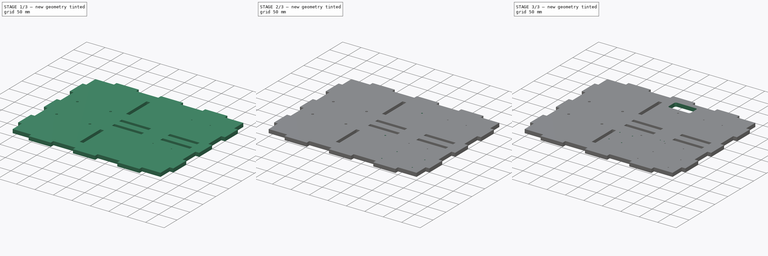
[diagram: build sequence overview — one tinted view per stage of 3, left to right]
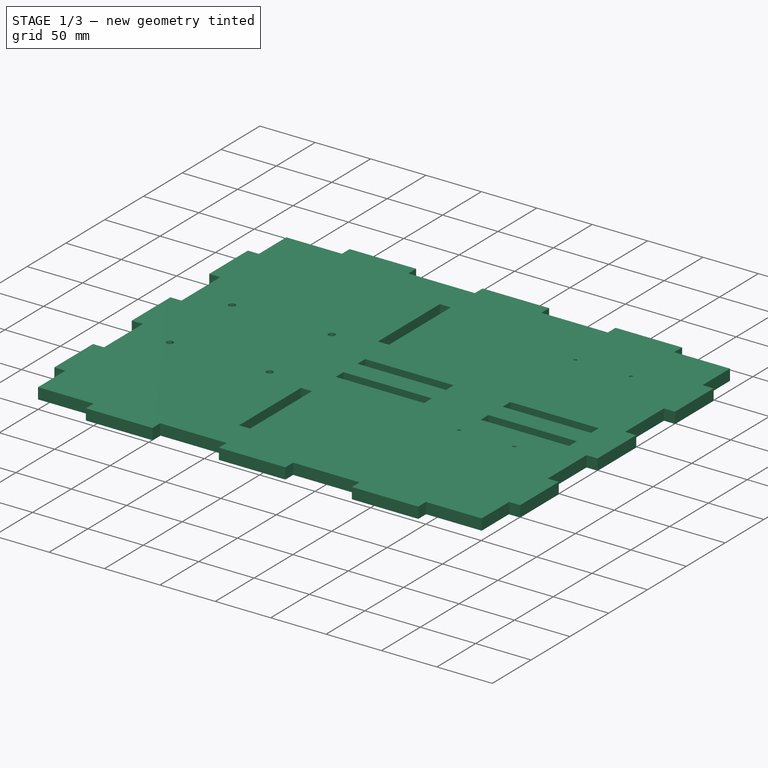
[diagram: stage 1 of 3 — iso view after this stage's code; geometry added in this stage tinted green]
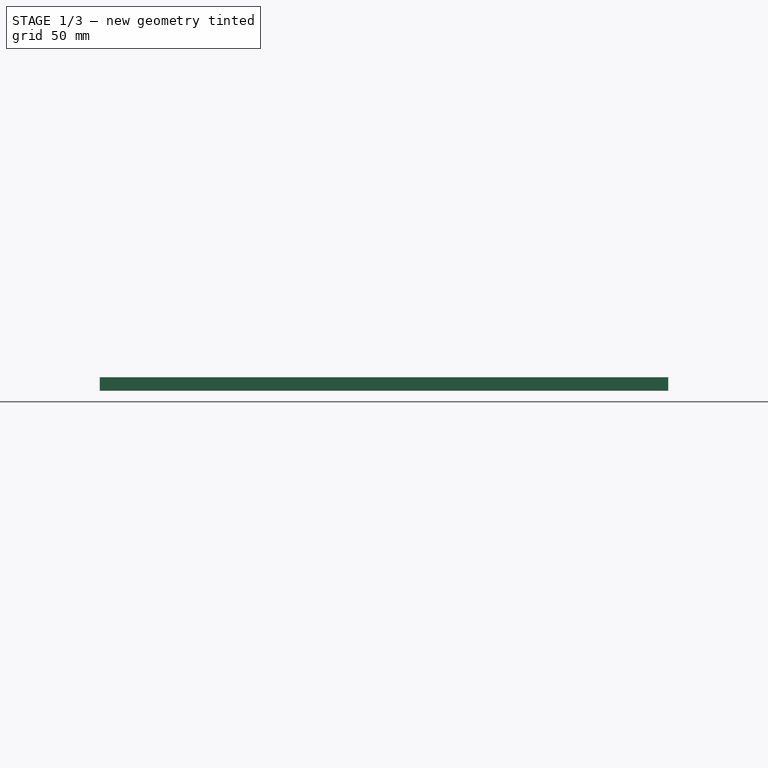
[diagram: stage 1 of 3 — front view after this stage's code; geometry added in this stage tinted green]
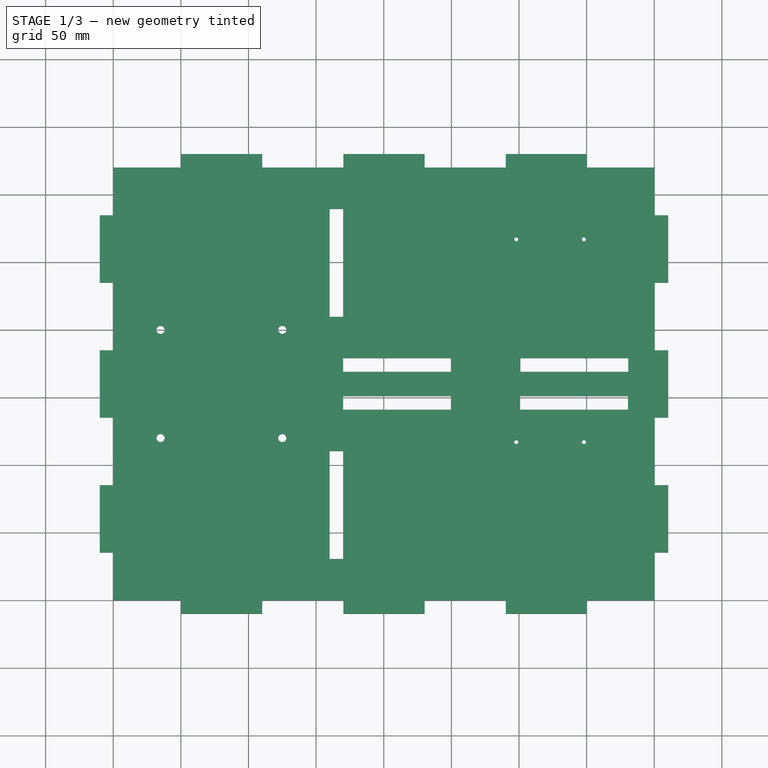
[diagram: stage 1 of 3 — top view after this stage's code; geometry added in this stage tinted green]
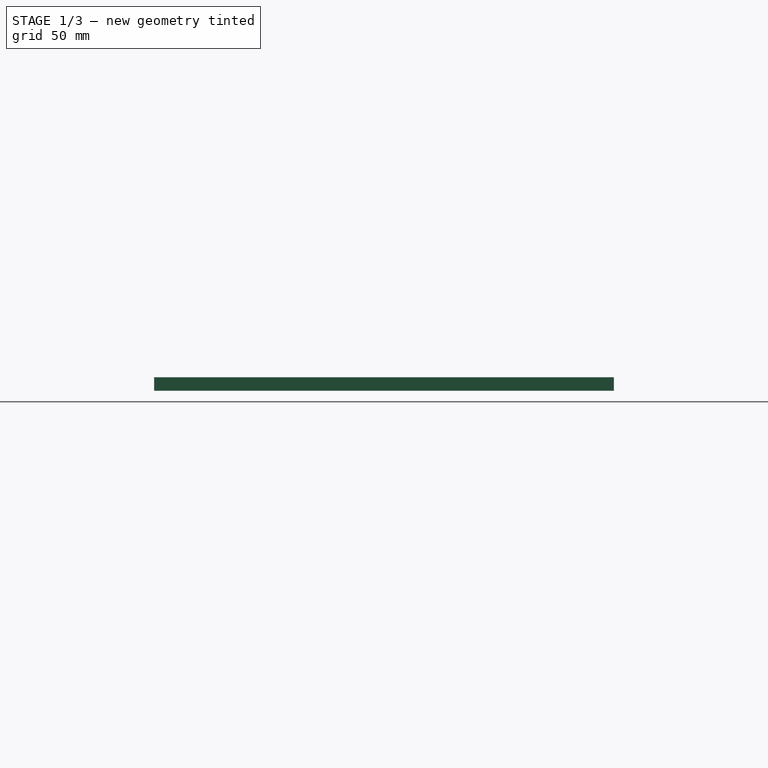
[diagram: stage 1 of 3 — right view after this stage's code; geometry added in this stage tinted green]
FCSTD DOCUMENT  (FreeCAD 0.19R19327 (Git))
Label: Base_metacrilato
License: All rights reserved
LicenseURL: http://en.wikipedia.org/wiki/All_rights_reserved
objects: Sketcher::SketchObject×8, PartDesign::Pocket×7, PartDesign::Pad×1, PartDesign::Plane×1, PartDesign::Body×1
note: 26 computed .brp shape members not serialized (recipe doc carries the construction recipe); baked Part::Feature solids carry a one-line shape summary decoded from their .brp

FEATURE [Sketcher::SketchObject] Sketch  label="Base"
  MapMode = 5
  Support = -> [XY_Plane]
  sketch-geometry (78):
    g0: LineSegment StartX=0 StartY=0 StartZ=0 EndX=0 EndY=35.3 EndZ=0
    g1: LineSegment StartX=0 StartY=35.3 StartZ=0 EndX=-10 EndY=35.3 EndZ=0
    g2: LineSegment StartX=-10 StartY=35.3 StartZ=0 EndX=-10 EndY=85.1 EndZ=0
    g3: LineSegment StartX=-10 StartY=85.1 StartZ=0 EndX=0 EndY=85.1 EndZ=0
    g4: LineSegment StartX=0 StartY=85.1 StartZ=0 EndX=0 EndY=135.1 EndZ=0
    g5: LineSegment StartX=0 StartY=135.1 StartZ=0 EndX=-10 EndY=135.1 EndZ=0
    g6: LineSegment StartX=-10 StartY=135.1 StartZ=0 EndX=-10 EndY=184.9 EndZ=0
    g7: LineSegment StartX=-10 StartY=184.9 StartZ=0 EndX=1.8e-15 EndY=184.9 EndZ=0
    g8: LineSegment StartX=1.8e-15 StartY=184.9 StartZ=0 EndX=0 EndY=234.9 EndZ=0
    g9: LineSegment StartX=0 StartY=234.9 StartZ=0 EndX=-10 EndY=234.9 EndZ=0
    g10: LineSegment StartX=-10 StartY=234.9 StartZ=0 EndX=-10 EndY=284.7 EndZ=0
    g11: LineSegment StartX=-10 StartY=284.7 StartZ=0 EndX=0 EndY=284.7 EndZ=0
    g12: LineSegment StartX=-5e-16 StartY=284.7 StartZ=0 EndX=0 EndY=320 EndZ=0
    g13: LineSegment StartX=0 StartY=320 StartZ=0 EndX=50.2 EndY=320 EndZ=0
    g14: LineSegment StartX=50.2 StartY=320 StartZ=0 EndX=50.2 EndY=330 EndZ=0
    g15: LineSegment StartX=50.2 StartY=330 StartZ=0 EndX=110.2 EndY=330 EndZ=0
    g16: LineSegment StartX=110.2 StartY=330 StartZ=0 EndX=110.2 EndY=320 EndZ=0
    g17: LineSegment StartX=110.2 StartY=320 StartZ=0 EndX=170.2 EndY=320 EndZ=0
    g18: LineSegment StartX=170.2 StartY=320 StartZ=0 EndX=170.2 EndY=330 EndZ=0
    g19: LineSegment StartX=170.2 StartY=330 StartZ=0 EndX=230.2 EndY=330 EndZ=0
    g20: LineSegment StartX=230.2 StartY=330 StartZ=0 EndX=230.2 EndY=320 EndZ=0
    g21: LineSegment StartX=230.2 StartY=320 StartZ=0 EndX=290.2 EndY=320 EndZ=0
    g22: LineSegment StartX=290.2 StartY=320 StartZ=0 EndX=290.2 EndY=330 EndZ=0
    g23: LineSegment StartX=290.2 StartY=330 StartZ=0 EndX=350.2 EndY=330 EndZ=0
    g24: LineSegment StartX=350.2 StartY=330 StartZ=0 EndX=350.2 EndY=320 EndZ=0
    g25: LineSegment StartX=350.2 StartY=320 StartZ=0 EndX=400.4 EndY=320 EndZ=0
    g26: LineSegment StartX=410.4 StartY=284.7 StartZ=0 EndX=410.4 EndY=234.9 EndZ=0
    g27: LineSegment StartX=410.4 StartY=234.9 StartZ=0 EndX=400.4 EndY=234.9 EndZ=0
    g28: LineSegment StartX=400.4 StartY=234.9 StartZ=0 EndX=400.4 EndY=184.9 EndZ=0
    g29: LineSegment StartX=400.4 StartY=184.9 StartZ=0 EndX=410.4 EndY=184.9 EndZ=0
    g30: LineSegment StartX=410.4 StartY=184.9 StartZ=0 EndX=410.4 EndY=135.1 EndZ=0
    g31: LineSegment StartX=410.4 StartY=135.1 StartZ=0 EndX=400.4 EndY=135.1 EndZ=0
    g32: LineSegment StartX=400.4 StartY=135.1 StartZ=0 EndX=400.4 EndY=85.1 EndZ=0
    g33: LineSegment StartX=400.4 StartY=85.1 StartZ=0 EndX=410.4 EndY=85.1 EndZ=0
    g34: LineSegment StartX=410.4 StartY=85.1 StartZ=0 EndX=410.4 EndY=35.3 EndZ=0
    g35: LineSegment StartX=410.4 StartY=35.3 StartZ=0 EndX=400.4 EndY=35.3 EndZ=0
    g36: LineSegment StartX=400.4 StartY=35.3 StartZ=0 EndX=400.4 EndY=0 EndZ=0
    g37: LineSegment StartX=400.4 StartY=0 StartZ=0 EndX=350.2 EndY=0 EndZ=0
    g38: LineSegment StartX=350.2 StartY=0 StartZ=0 EndX=350.2 EndY=-10 EndZ=0
    g39: LineSegment StartX=350.2 StartY=-10 StartZ=0 EndX=290.2 EndY=-10 EndZ=0
    g40: LineSegment StartX=290.2 StartY=-10 StartZ=0 EndX=290.2 EndY=0 EndZ=0
    g41: LineSegment StartX=290.2 StartY=0 StartZ=0 EndX=230.2 EndY=0 EndZ=0
    g42: LineSegment StartX=230.2 StartY=0 StartZ=0 EndX=230.2 EndY=-10 EndZ=0
    g43: LineSegment StartX=230.2 StartY=-10 StartZ=0 EndX=170.2 EndY=-10 EndZ=0
    g44: LineSegment StartX=170.2 StartY=-10 StartZ=0 EndX=170.2 EndY=0 EndZ=0
    g45: LineSegment StartX=170.2 StartY=0 StartZ=0 EndX=110.2 EndY=0 EndZ=0
    g46: LineSegment StartX=110.2 StartY=0 StartZ=0 EndX=110.2 EndY=-10 EndZ=0
    g47: LineSegment StartX=110.2 StartY=-10 StartZ=0 EndX=50.2 EndY=-10 EndZ=0
    g48: LineSegment StartX=50.2 StartY=-10 StartZ=0 EndX=50.2 EndY=0 EndZ=0
    g49: LineSegment StartX=50.2 StartY=0 StartZ=0 EndX=0 EndY=0 EndZ=0
    g50: LineSegment StartX=410.4 StartY=284.7 StartZ=0 EndX=400.4 EndY=284.7 EndZ=0
    g51: LineSegment StartX=400.4 StartY=284.7 StartZ=0 EndX=400.4 EndY=320 EndZ=0
    g52: LineSegment StartX=170 StartY=289.4 StartZ=0 EndX=160 EndY=289.4 EndZ=0
    g53: LineSegment StartX=160 StartY=289.4 StartZ=0 EndX=160 EndY=209.6 EndZ=0
    g54: LineSegment StartX=160 StartY=209.6 StartZ=0 EndX=170 EndY=209.6 EndZ=0
    g55: LineSegment StartX=170 StartY=209.6 StartZ=0 EndX=170 EndY=289.4 EndZ=0
    g56: LineSegment StartX=170 StartY=110.4 StartZ=0 EndX=160 EndY=110.4 EndZ=0
    g57: LineSegment StartX=160 StartY=110.4 StartZ=0 EndX=160 EndY=30.6 EndZ=0
    g58: LineSegment StartX=160 StartY=30.6 StartZ=0 EndX=170 EndY=30.6 EndZ=0
    g59: LineSegment StartX=170 StartY=30.6 StartZ=0 EndX=170 EndY=110.4 EndZ=0
    g60: LineSegment StartX=170 StartY=179 StartZ=0 EndX=249.8 EndY=179 EndZ=0
    g61: LineSegment StartX=249.8 StartY=179 StartZ=0 EndX=249.8 EndY=169 EndZ=0
    g62: LineSegment StartX=249.8 StartY=169 StartZ=0 EndX=170 EndY=169 EndZ=0
    g63: LineSegment StartX=170 StartY=169 StartZ=0 EndX=170 EndY=179 EndZ=0
    g64: LineSegment StartX=301 StartY=179 StartZ=0 EndX=380.8 EndY=179 EndZ=0
    g65: LineSegment StartX=380.8 StartY=179 StartZ=0 EndX=380.8 EndY=169 EndZ=0
    g66: LineSegment StartX=380.8 StartY=169 StartZ=0 EndX=301 EndY=169 EndZ=0
    g67: LineSegment StartX=301 StartY=169 StartZ=0 EndX=301 EndY=179 EndZ=0
    g68: LineSegment StartX=170 StartY=151 StartZ=0 EndX=249.8 EndY=151 EndZ=0
    g69: LineSegment StartX=249.8 StartY=151 StartZ=0 EndX=249.8 EndY=141 EndZ=0
    g70: LineSegment StartX=249.8 StartY=141 StartZ=0 EndX=170 EndY=141 EndZ=0
    g71: LineSegment StartX=170 StartY=141 StartZ=0 EndX=170 EndY=151 EndZ=0
    g72: LineSegment StartX=300.8 StartY=151 StartZ=0 EndX=380.6 EndY=151 EndZ=0
    g73: LineSegment StartX=380.6 StartY=151 StartZ=0 EndX=380.6 EndY=141 EndZ=0
    g74: LineSegment StartX=380.6 StartY=141 StartZ=0 EndX=300.8 EndY=141 EndZ=0
    g75: LineSegment StartX=300.8 StartY=141 StartZ=0 EndX=300.8 EndY=151 EndZ=0
    g76: LineSegment [constr] StartX=170 StartY=0 StartZ=0 EndX=170 EndY=320 EndZ=0
    g77: LineSegment [constr] StartX=170 StartY=169 StartZ=0 EndX=410.4 EndY=169 EndZ=0
  constraints (234):
    c: Coincident(g-1,g0)
    c: Vertical(g0)
    c: Coincident(g0,g1)
    c: Horizontal(g1)
    c: Coincident(g1,g2)
    c: Vertical(g2)
    c: Coincident(g2,g3)
    c: Horizontal(g3)
    c: Coincident(g3,g4)
    c: PointOnObject(g4,g-2)
    c: Coincident(g4,g5)
    c: Coincident(g5,g6)
    c: Vertical(g6)
    c: Coincident(g6,g7)
    c: Horizontal(g7)
    c: Coincident(g7,g8)
    c: PointOnObject(g8,g-2)
    c: Coincident(g8,g9)
    c: Coincident(g9,g10)
    c: Vertical(g10)
    c: Coincident(g10,g11)
    c: Coincident(g11,g12)
    c: PointOnObject(g12,g-2)
    c: Coincident(g12,g13)
    c: Horizontal(g13)
    c: Coincident(g13,g14)
    c: Vertical(g14)
    c: Coincident(g14,g15)
    c: Horizontal(g15)
    c: Coincident(g15,g16)
    c: Coincident(g16,g17)
    c: Horizontal(g17)
    c: Coincident(g17,g18)
    c: Vertical(g18)
    c: Coincident(g18,g19)
    c: Horizontal(g19)
    c: Coincident(g19,g20)
    c: Vertical(g20)
    c: Coincident(g20,g21)
    c: Horizontal(g21)
    c: Coincident(g21,g22)
    c: Coincident(g22,g23)
    c: Horizontal(g23)
    c: Coincident(g23,g24)
    c: Coincident(g24,g25)
    c: Coincident(g26,g27)
    c: Coincident(g27,g28)
    c: Coincident(g28,g29)
    c: Horizontal(g29)
    c: Coincident(g29,g30)
    c: Vertical(g30)
    c: Coincident(g30,g31)
    c: Horizontal(g31)
    c: Coincident(g31,g32)
    c: Coincident(g32,g33)
    c: Coincident(g33,g34)
    c: Vertical(g34)
    c: Coincident(g34,g35)
    c: Coincident(g35,g36)
    c: PointOnObject(g36,g-1)
    c: Coincident(g36,g37)
    c: PointOnObject(g37,g-1)
    c: Coincident(g37,g38)
    c: Vertical(g38)
    c: Coincident(g38,g39)
    c: Coincident(g39,g40)
    c: Coincident(g40,g41)
    c: PointOnObject(g41,g-1)
    c: Horizontal(g41)
    c: Coincident(g41,g42)
    c: Coincident(g42,g43)
    c: Coincident(g43,g44)
    c: Coincident(g44,g45)
    c: PointOnObject(g45,g-1)
    c: Coincident(g45,g46)
    c: Vertical(g46)
    c: Coincident(g46,g47)
    c: Horizontal(g47)
    c: Coincident(g47,g48)
    c: Coincident(g48,g49)
    c: Coincident(g49,g0)
    c: Coincident(g26,g50)
    c: Horizontal(g50)
    c: Coincident(g50,g51)
    c: Coincident(g51,g25)
    c: Vertical(g51)
    c: Vertical(g26)
    c: Vertical(g28)
    c: Vertical(g32)
    c: Vertical(g36)
    c: Vertical(g48)
    c: Vertical(g44)
    c: Vertical(g42)
    c: Vertical(g40)
    c: Vertical(g16)
    c: Vertical(g22)
    c: Vertical(g24)
    c: Horizontal(g43)
    c: Horizontal(g35)
    c: Horizontal(g33)
    c: Horizontal(g25)
    c: Horizontal(g27)
    c: Horizontal(g9)
    c: Horizontal(g11)
    c: Equal(g34,g30)
    c: Equal(g30,g26)
    c: Equal(g26,g10)
    c: Equal(g10,g6)
    c: Equal(g6,g2)
    c: DistanceY(g10,g10) = 49.8
    c: Equal(g33,g35)
    c: Equal(g35,g38)
    c: Equal(g38,g40)
    c: Equal(g40,g42)
    c: Equal(g42,g44)
    c: Equal(g44,g46)
    c: Equal(g46,g48)
    c: Equal(g48,g1)
    c: Equal(g1,g3)
    c: Equal(g3,g5)
    c: Equal(g5,g7)
    c: Equal(g7,g9)
    c: Equal(g9,g11)
    c: Equal(g11,g14)
    c: Equal(g14,g16)
    c: Equal(g16,g18)
    c: Equal(g18,g20)
    c: Equal(g20,g22)
    c: Equal(g22,g24)
    c: Equal(g24,g50)
    c: Equal(g50,g27)
    c: Equal(g27,g29)
    c: Equal(g29,g31)
    c: DistanceX(g50,g50) = 10
    c: Equal(g0,g12)
    c: Equal(g12,g51)
    c: Equal(g51,g36)
    c: DistanceY(g12,g12) = 35.3
    c: DistanceX(g13,g13) = 50.2
    c: Equal(g13,g25)
    c: Equal(g25,g37)
    c: Equal(g37,g49)
    c: DistanceX(g15,g15) = 60
    c: Equal(g43,g47)
    c: Equal(g47,g39)
    c: Equal(g39,g23)
    c: Equal(g23,g19)
    c: Equal(g19,g15)
    c: Equal(g45,g47)
    c: Equal(g15,g17)
    c: Equal(g17,g21)
    c: Coincident(g52,g53)
    c: Coincident(g53,g54)
    c: Coincident(g54,g55)
    c: Coincident(g55,g52)
    c: Horizontal(g52)
    c: Horizontal(g54)
    c: Vertical(g53)
    c: Coincident(g56,g57)
    c: Coincident(g57,g58)
    c: Coincident(g58,g59)
    c: Coincident(g59,g56)
    c: Horizontal(g56)
    c: Horizontal(g58)
    c: Vertical(g57)
    c: Coincident(g60,g61)
    c: Coincident(g61,g62)
    c: Coincident(g62,g63)
    c: Coincident(g63,g60)
    c: Horizontal(g60)
    c: Vertical(g61)
    c: Vertical(g63)
    c: Coincident(g64,g65)
    c: Coincident(g65,g66)
    c: Coincident(g66,g67)
    c: Coincident(g67,g64)
    c: Horizontal(g64)
    c: Vertical(g65)
    c: Vertical(g67)
    c: Coincident(g68,g69)
    c: Coincident(g69,g70)
    c: Coincident(g70,g71)
    c: Coincident(g71,g68)
    c: Horizontal(g68)
    c: Vertical(g69)
    c: Vertical(g71)
    c: Coincident(g72,g73)
    c: Coincident(g73,g74)
    c: Coincident(g74,g75)
    c: Coincident(g75,g72)
    c: Horizontal(g72)
    c: Vertical(g73)
    c: Vertical(g75)
    c: Equal(g52,g54)
    c: Equal(g54,g56)
    c: Equal(g56,g63)
    c: Equal(g63,g61)
    c: Equal(g61,g67)
    c: Equal(g67,g65)
    c: Equal(g65,g73)
    c: Equal(g73,g75)
    c: Equal(g75,g69)
    c: Equal(g69,g71)
    c: Equal(g71,g58)
    c: DistanceX(g58,g58) = 10
    c: Vertical(g76)
    c: PointOnObject(g76,g-1)
    c: PointOnObject(g76,g13)
    c: DistanceX(g0,g76) = 170
    c: PointOnObject(g58,g76)
    c: PointOnObject(g54,g76)
    c: PointOnObject(g62,g76)
    c: PointOnObject(g70,g76)
    c: DistanceY(g68,g61) = 18
    c: DistanceX(g60,g60) = 79.8
    c: Equal(g60,g68)
    c: Equal(g68,g72)
    c: Equal(g72,g64)
    c: PointOnObject(g77,g30)
    c: Horizontal(g77)
    c: Coincident(g62,g77)
    c: PointOnObject(g66,g77)
    c: DistanceY(g72,g66) = 18
    c: DistanceX(g60,g64) = 51.2
    c: DistanceX(g68,g72) = 51
    c: DistanceY(g44,g58) = 30.6
    c: DistanceY(g56,g70) = 30.6
    c: Equal(g53,g60)
    c: Equal(g60,g57)
    c: Equal(g32,g28)
    c: Equal(g28,g4)
    c: Equal(g4,g8)
    c: DistanceY(g8,g8) = 50
    c: DistanceY(g60,g54) = 30.6
FEATURE [PartDesign::Pad] Pad  label="Pad_Base"
  Length = 10
  Length2 = 100
  Profile = -> Sketch
  Type = 0
FEATURE [PartDesign::Plane] DatumPlane
  Length = 514.03
  MapMode = 5
  Placement = pos=(0,0,10) rot=(0,0,1;0rad)
  ResizeMode = 0
  Support = -> [Pad]
  Width = 433.63
FEATURE [Sketcher::SketchObject] Sketch001  label="S.Agujeros_Ress"
  MapMode = 5
  Placement = pos=(0,0,10) rot=(0,0,1;0rad)
  Support = -> [DatumPlane]
  sketch-geometry (8):
    g0: Circle CenterX=35 CenterY=120 CenterZ=0 NormalX=0 NormalY=0 NormalZ=1 AngleXU=0 Radius=3
    g1: Circle CenterX=125 CenterY=120 CenterZ=0 NormalX=0 NormalY=0 NormalZ=1 AngleXU=0 Radius=3
    g2: Circle CenterX=125 CenterY=200 CenterZ=0 NormalX=0 NormalY=0 NormalZ=1 AngleXU=0 Radius=3
    g3: Circle CenterX=35 CenterY=200 CenterZ=0 NormalX=0 NormalY=0 NormalZ=1 AngleXU=0 Radius=3
    g4: LineSegment [constr] StartX=35 StartY=200 StartZ=0 EndX=125 EndY=200 EndZ=0
    g5: LineSegment [constr] StartX=125 StartY=200 StartZ=0 EndX=125 EndY=120 EndZ=0
    g6: LineSegment [constr] StartX=125 StartY=120 StartZ=0 EndX=35 EndY=120 EndZ=0
    g7: LineSegment [constr] StartX=35 StartY=120 StartZ=0 EndX=35 EndY=200 EndZ=0
  constraints (20):
    c: Equal(g3,g2)
    c: Equal(g2,g1)
    c: Equal(g1,g0)
    c: Radius(g0) = 3
    c: Coincident(g4,g5)
    c: Coincident(g5,g6)
    c: Coincident(g6,g7)
    c: Coincident(g7,g4)
    c: Horizontal(g4)
    c: Horizontal(g6)
    c: Vertical(g5)
    c: Vertical(g7)
    c: DistanceY(g7,g7) = 80
    c: DistanceX(g4,g4) = 90
    c: DistanceY(g-1,g6) = 120
    c: DistanceX(g-1,g6) = 35
    c: Coincident(g0,g6)
    c: Coincident(g1,g5)
    c: Coincident(g2,g4)
    c: Coincident(g3,g4)
FEATURE [PartDesign::Pocket] Pocket  label="Taladros_Rees"
  BaseFeature = -> Pad
  Length = 5
  Length2 = 100
  Profile = -> Sketch001
  Type = 1
FEATURE [Sketcher::SketchObject] Sketch002
  MapMode = 5
  Placement = pos=(0,0,10) rot=(0,0,1;0rad)
  Support = -> [DatumPlane]
  sketch-geometry (8):
    g0: Circle CenterX=298 CenterY=267 CenterZ=0 NormalX=0 NormalY=0 NormalZ=1 AngleXU=0 Radius=1.5
    g1: Circle CenterX=348 CenterY=267 CenterZ=0 NormalX=0 NormalY=0 NormalZ=1 AngleXU=0 Radius=1.5
    g2: Circle CenterX=298 CenterY=117 CenterZ=0 NormalX=0 NormalY=0 NormalZ=1 AngleXU=0 Radius=1.5
    g3: Circle CenterX=348 CenterY=117 CenterZ=0 NormalX=0 NormalY=0 NormalZ=1 AngleXU=0 Radius=1.5
    g4: LineSegment [constr] StartX=298 StartY=267 StartZ=0 EndX=348 EndY=267 EndZ=0
    g5: LineSegment [constr] StartX=348 StartY=267 StartZ=0 EndX=348 EndY=117 EndZ=0
    g6: LineSegment [constr] StartX=348 StartY=117 StartZ=0 EndX=298 EndY=117 EndZ=0
    g7: LineSegment [constr] StartX=298 StartY=117 StartZ=0 EndX=298 EndY=267 EndZ=0
  constraints (20):
    c: Equal(g0,g1)
    c: Equal(g1,g3)
    c: Equal(g3,g2)
    c: Radius(g0) = 1.5
    c: Coincident(g4,g5)
    c: Coincident(g5,g6)
    c: Coincident(g6,g7)
    c: Coincident(g7,g4)
    c: Horizontal(g4)
    c: Horizontal(g6)
    c: Vertical(g5)
    c: Vertical(g7)
    c: DistanceX(g6,g6) = 50
    c: DistanceY(g7,g7) = 150
    c: Coincident(g0,g4)
    c: Coincident(g1,g4)
    c: Coincident(g2,g6)
    c: Coincident(g3,g5)
    c: DistanceX(g-1,g2) = 298
    c: DistanceY(g-1,g2) = 117
FEATURE [PartDesign::Pocket] Pocket001  label="Taladros_Fuente"
  BaseFeature = -> Pocket
  Length = 5
  Length2 = 100
  Profile = -> Sketch002
  Type = 1
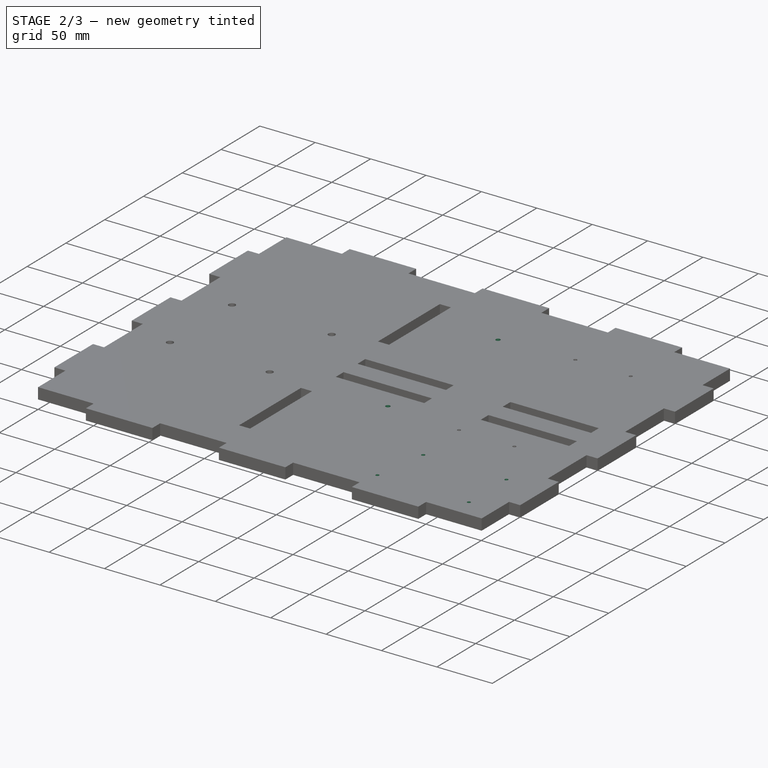
[diagram: stage 2 of 3 — iso view after this stage's code; geometry added in this stage tinted green]
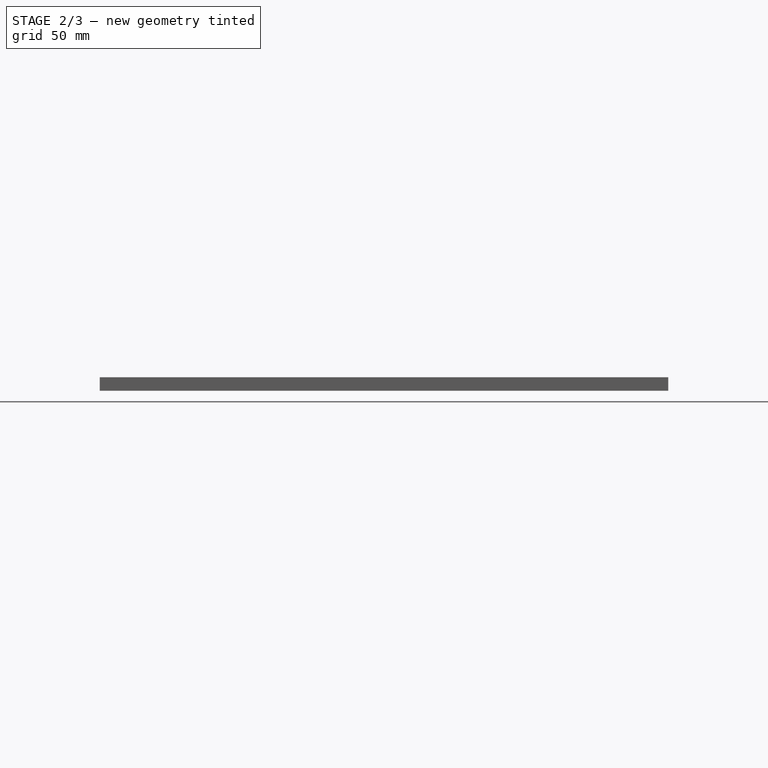
[diagram: stage 2 of 3 — front view after this stage's code; geometry added in this stage tinted green]
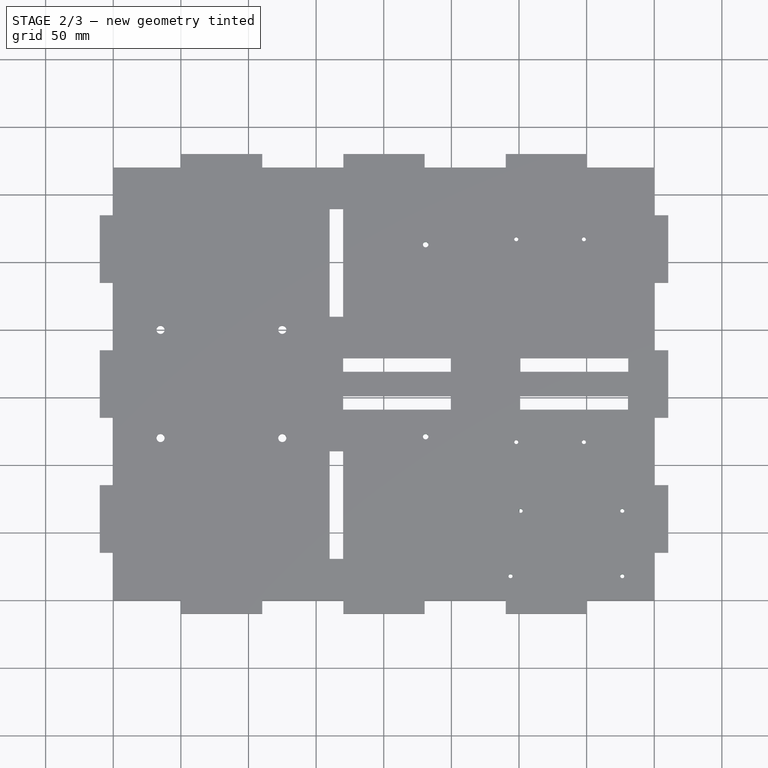
[diagram: stage 2 of 3 — top view after this stage's code; geometry added in this stage tinted green]
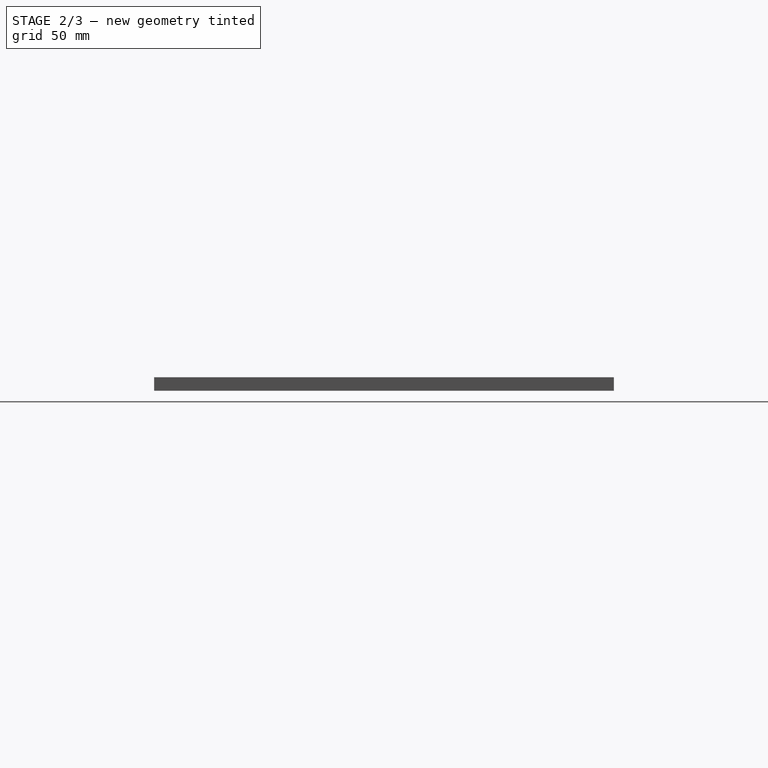
[diagram: stage 2 of 3 — right view after this stage's code; geometry added in this stage tinted green]
FEATURE [Sketcher::SketchObject] Sketch003
  MapMode = 5
  Placement = pos=(0,0,10) rot=(0,0,1;0rad)
  Support = -> [DatumPlane]
  sketch-geometry (8):
    g0: Circle CenterX=376.383 CenterY=66.166 CenterZ=0 NormalX=0 NormalY=0 NormalZ=1 AngleXU=0 Radius=1.5
    g1: Circle CenterX=376.383 CenterY=17.83 CenterZ=0 NormalX=0 NormalY=0 NormalZ=1 AngleXU=0 Radius=1.5
    g2: Circle CenterX=293.757 CenterY=17.83 CenterZ=0 NormalX=0 NormalY=0 NormalZ=1 AngleXU=0 Radius=1.5
    g3: Circle CenterX=301.25 CenterY=66.166 CenterZ=0 NormalX=0 NormalY=0 NormalZ=1 AngleXU=0 Radius=1.5
    g4: LineSegment [constr] StartX=376.383 StartY=66.166 StartZ=0 EndX=301.25 EndY=66.166 EndZ=0
    g5: LineSegment [constr] StartX=301.25 StartY=66.166 StartZ=0 EndX=301.25 EndY=17.83 EndZ=0
    g6: LineSegment [constr] StartX=301.25 StartY=17.83 StartZ=0 EndX=376.383 EndY=17.83 EndZ=0
    g7: LineSegment [constr] StartX=376.383 StartY=17.83 StartZ=0 EndX=376.383 EndY=66.166 EndZ=0
  constraints (21):
    c: Equal(g1,g0)
    c: Equal(g0,g3)
    c: Equal(g3,g2)
    c: Radius(g3) = 1.5
    c: Coincident(g4,g5)
    c: Coincident(g5,g6)
    c: Coincident(g6,g7)
    c: Coincident(g7,g4)
    c: Horizontal(g4)
    c: Horizontal(g6)
    c: Vertical(g5)
    c: Vertical(g7)
    c: Coincident(g3,g4)
    c: Coincident(g4,g0)
    c: Coincident(g1,g6)
    c: PointOnObject(g2,g6)
    c: DistanceX(g2,g1) = 82.626
    c: DistanceY(g7,g7) = 48.336
    c: DistanceX(g4,g4) = 75.133
    c: DistanceY(g-1,g5) = 17.83
    c: DistanceX(g-1,g5) = 301.25
FEATURE [PartDesign::Pocket] Pocket002  label="Taladros_A.Mega"
  BaseFeature = -> Pocket001
  Length = 5
  Length2 = 100
  Profile = -> Sketch003
  Type = 1
FEATURE [Sketcher::SketchObject] Sketch004
  MapMode = 5
  Placement = pos=(0,0,10) rot=(0,0,1;0rad)
  Support = -> [DatumPlane]
  sketch-geometry (3):
    g0: Circle CenterX=231 CenterY=263 CenterZ=0 NormalX=0 NormalY=0 NormalZ=1 AngleXU=0 Radius=2
    g1: Circle CenterX=231 CenterY=121 CenterZ=0 NormalX=0 NormalY=0 NormalZ=1 AngleXU=0 Radius=2
    g2: LineSegment [constr] StartX=231 StartY=121 StartZ=0 EndX=231 EndY=263 EndZ=0
  constraints (8):
    c: Coincident(g2,g1)
    c: Vertical(g2)
    c: DistanceY(g2,g2) = 142
    c: Coincident(g0,g2)
    c: Equal(g0,g1)
    c: Radius(g0) = 2
    c: DistanceY(g-1,g1) = 121
    c: DistanceX(g-1,g1) = 231
FEATURE [PartDesign::Pocket] Pocket003  label="Taladro_Driver"
  BaseFeature = -> Pocket002
  Length = 5
  Length2 = 100
  Profile = -> Sketch004
  Type = 1
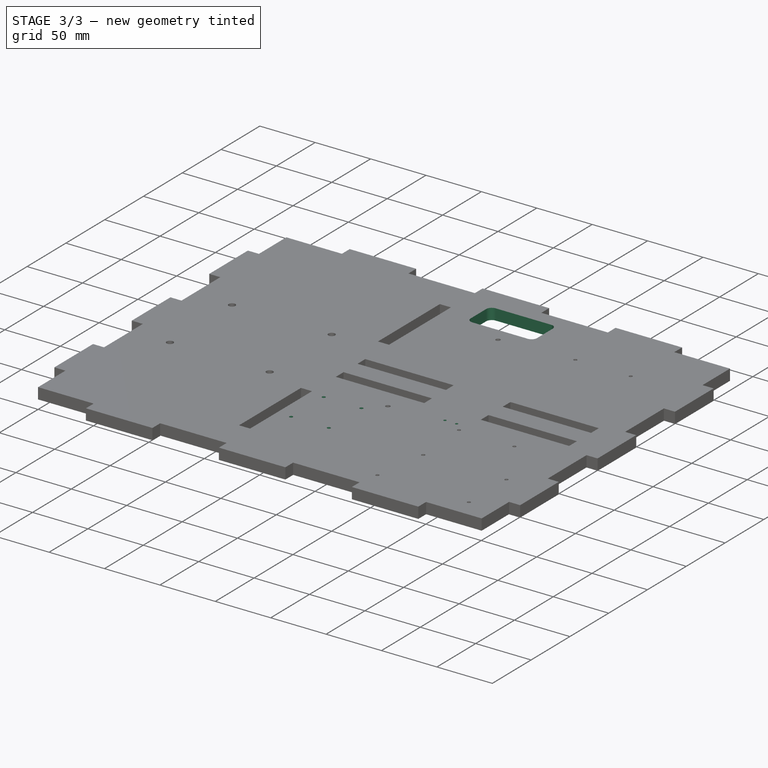
[diagram: stage 3 of 3 — iso view after this stage's code; geometry added in this stage tinted green]
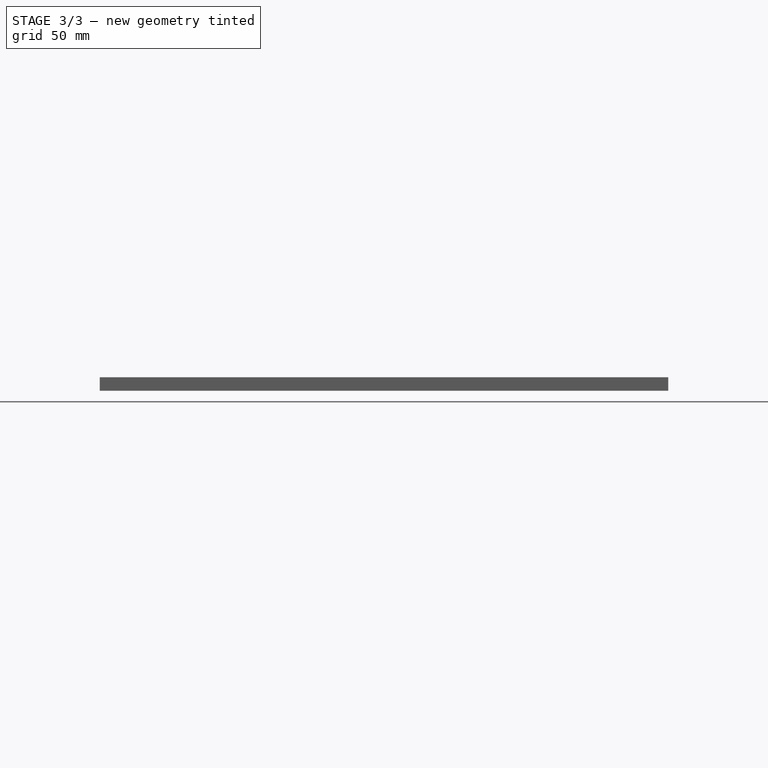
[diagram: stage 3 of 3 — front view after this stage's code; geometry added in this stage tinted green]
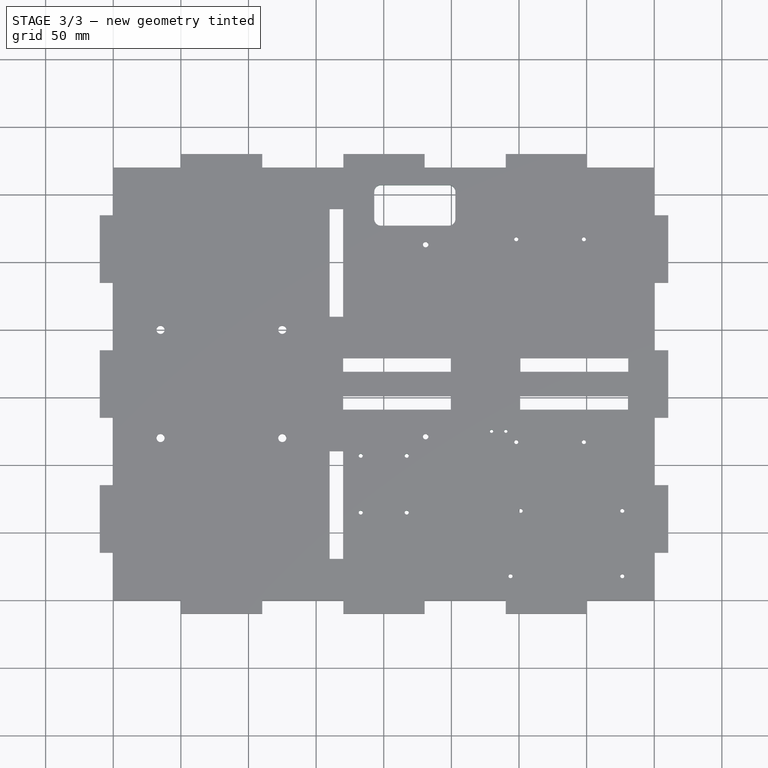
[diagram: stage 3 of 3 — top view after this stage's code; geometry added in this stage tinted green]
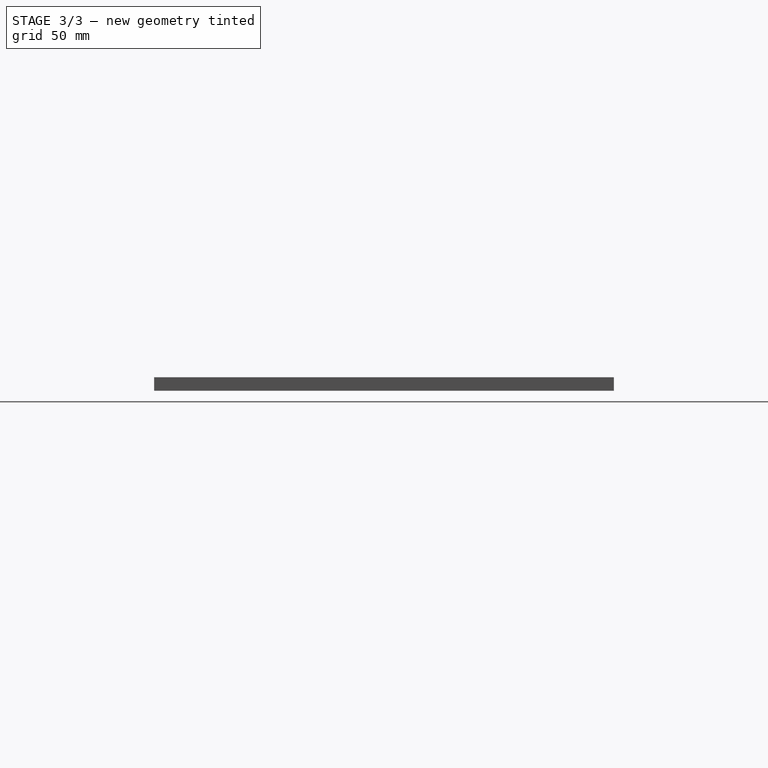
[diagram: stage 3 of 3 — right view after this stage's code; geometry added in this stage tinted green]
FEATURE [Sketcher::SketchObject] Sketch005
  MapMode = 5
  Placement = pos=(0,0,10) rot=(0,0,1;0rad)
  Support = -> [DatumPlane]
  sketch-geometry (8):
    g0: LineSegment StartX=198 StartY=307 StartZ=0 EndX=248 EndY=307 EndZ=0
    g1: LineSegment StartX=253 StartY=302 StartZ=0 EndX=253 EndY=282 EndZ=0
    g2: LineSegment StartX=248 StartY=277 StartZ=0 EndX=198 EndY=277 EndZ=0
    g3: LineSegment StartX=193 StartY=282 StartZ=0 EndX=193 EndY=302 EndZ=0
    g4: ArcOfCircle CenterX=198 CenterY=282 CenterZ=0 NormalX=0 NormalY=0 NormalZ=1 AngleXU=0 Radius=5 StartAngle=3.14159 EndAngle=4.71239
    g5: ArcOfCircle CenterX=248 CenterY=282 CenterZ=0 NormalX=0 NormalY=0 NormalZ=1 AngleXU=0 Radius=5 StartAngle=4.71239 EndAngle=6.28319
    g6: ArcOfCircle CenterX=248 CenterY=302 CenterZ=0 NormalX=0 NormalY=0 NormalZ=1 AngleXU=0 Radius=5 StartAngle=1e-15 EndAngle=1.5708
    g7: ArcOfCircle CenterX=198 CenterY=302 CenterZ=0 NormalX=0 NormalY=0 NormalZ=1 AngleXU=0 Radius=5 StartAngle=1.5708 EndAngle=3.14159
  constraints (20):
    c: Horizontal(g0)
    c: Horizontal(g2)
    c: Vertical(g1)
    c: Vertical(g3)
    c: Tangent(g3,g4) = 1.5708
    c: Tangent(g2,g4) = 1.5708
    c: Tangent(g2,g5) = 1.5708
    c: Tangent(g1,g5) = 1.5708
    c: Tangent(g1,g6) = 1.5708
    c: Tangent(g0,g6) = 1.5708
    c: Tangent(g0,g7) = 1.5708
    c: Tangent(g3,g7) = 1.5708
    c: Equal(g7,g4)
    c: Equal(g4,g5)
    c: Equal(g5,g6)
    c: Radius(g7) = 5
    c: DistanceY(g2,g0) = 30
    c: DistanceX(g3,g1) = 60
    c: DistanceX(g-1,g3) = 193
    c: DistanceY(g-1,g3) = 282
FEATURE [PartDesign::Pocket] Pocket004  label="Pasacables"
  BaseFeature = -> Pocket003
  Length = 5
  Length2 = 100
  Profile = -> Sketch005
  Type = 1
FEATURE [Sketcher::SketchObject] Sketch006
  MapMode = 5
  Placement = pos=(0,0,10) rot=(0,0,1;0rad)
  Support = -> [DatumPlane]
  sketch-geometry (3):
    g0: LineSegment [constr] StartX=279.75 StartY=125 StartZ=0 EndX=290.25 EndY=125 EndZ=0
    g1: Circle CenterX=279.75 CenterY=125 CenterZ=0 NormalX=0 NormalY=0 NormalZ=1 AngleXU=0 Radius=1.2
    g2: Circle CenterX=290.25 CenterY=125 CenterZ=0 NormalX=0 NormalY=0 NormalZ=1 AngleXU=0 Radius=1.2
  constraints (8):
    c: Horizontal(g0)
    c: Coincident(g1,g0)
    c: Coincident(g2,g0)
    c: Equal(g1,g2)
    c: Radius(g1) = 1.2
    c: DistanceX(g0,g0) = 10.5
    c: DistanceX(g-1,g1) = 279.75
    c: DistanceY(g-1,g1) = 125
FEATURE [PartDesign::Pocket] Pocket005  label="Taladro_sen_Inductivo"
  BaseFeature = -> Pocket004
  Length = 5
  Length2 = 100
  Profile = -> Sketch006
  Type = 1
FEATURE [Sketcher::SketchObject] Sketch007
  MapMode = 5
  Placement = pos=(0,0,10) rot=(0,0,1;0rad)
  Support = -> [DatumPlane]
  sketch-geometry (8):
    g0: LineSegment [constr] StartX=183 StartY=106.9 StartZ=0 EndX=217 EndY=106.9 EndZ=0
    g1: LineSegment [constr] StartX=217 StartY=106.9 StartZ=0 EndX=217 EndY=64.9 EndZ=0
    g2: LineSegment [constr] StartX=217 StartY=64.9 StartZ=0 EndX=183 EndY=64.9 EndZ=0
    g3: LineSegment [constr] StartX=183 StartY=64.9 StartZ=0 EndX=183 EndY=106.9 EndZ=0
    g4: Circle CenterX=183 CenterY=106.9 CenterZ=0 NormalX=0 NormalY=0 NormalZ=1 AngleXU=0 Radius=1.5
    g5: Circle CenterX=217 CenterY=106.9 CenterZ=0 NormalX=0 NormalY=0 NormalZ=1 AngleXU=0 Radius=1.5
    g6: Circle CenterX=217 CenterY=64.9 CenterZ=0 NormalX=0 NormalY=0 NormalZ=1 AngleXU=0 Radius=1.5
    g7: Circle CenterX=183 CenterY=64.9 CenterZ=0 NormalX=0 NormalY=0 NormalZ=1 AngleXU=0 Radius=1.5
  constraints (20):
    c: Coincident(g0,g1)
    c: Coincident(g1,g2)
    c: Coincident(g2,g3)
    c: Coincident(g3,g0)
    c: Horizontal(g0)
    c: Horizontal(g2)
    c: Vertical(g1)
    c: Vertical(g3)
    c: Coincident(g4,g0)
    c: Coincident(g5,g0)
    c: Coincident(g6,g1)
    c: Equal(g4,g5)
    c: Equal(g5,g7)
    c: Equal(g7,g6)
    c: Radius(g4) = 1.5
    c: DistanceX(g2,g2) = 34
    c: DistanceY(g3,g3) = 42
    c: Coincident(g7,g2)
    c: DistanceX(g-1,g7) = 183
    c: DistanceY(g-1,g7) = 64.9
FEATURE [PartDesign::Pocket] Pocket006
  BaseFeature = -> Pocket005
  Length = 5
  Length2 = 100
  Profile = -> Sketch007
  Type = 1
FEATURE [PartDesign::Body] Body
  Group = -> [Sketch,Pad,DatumPlane,Sketch001,Pocket,Sketch002,Pocket001,Sketch003,Pocket002,Sketch004,Pocket003,Sketch005,Pocket004,Sketch006,Pocket005,Sketch007,Pocket006]
  Origin = -> Origin
  Tip = -> Pocket006
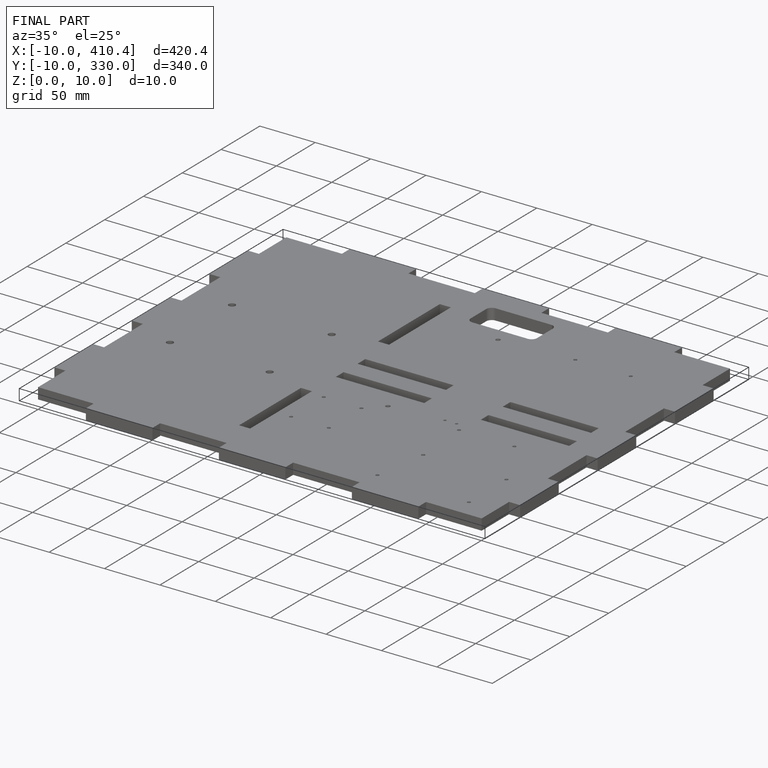
[diagram: finished part — iso view with bounding-box wireframe]
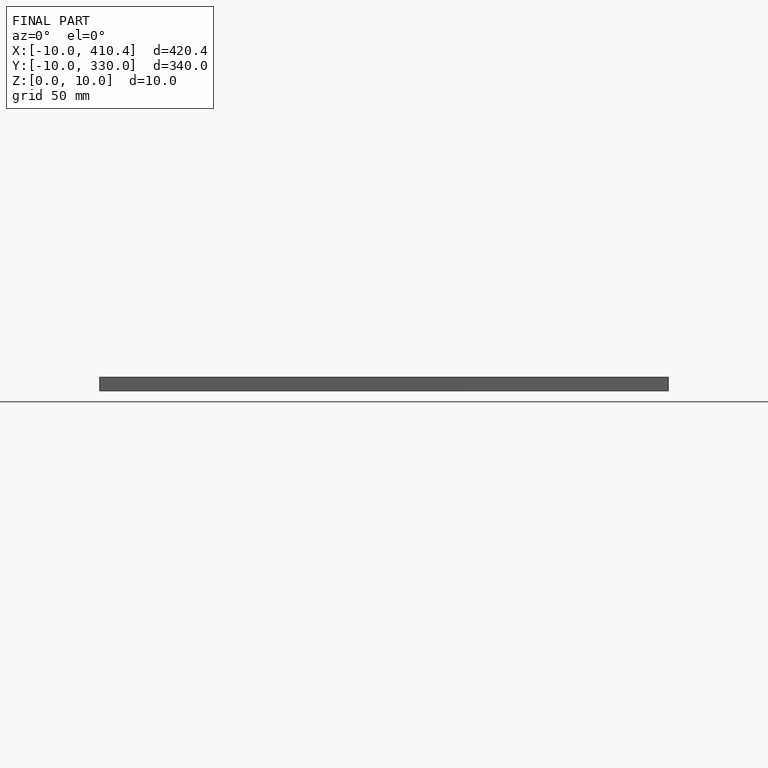
[diagram: finished part — front view with bounding-box wireframe]
